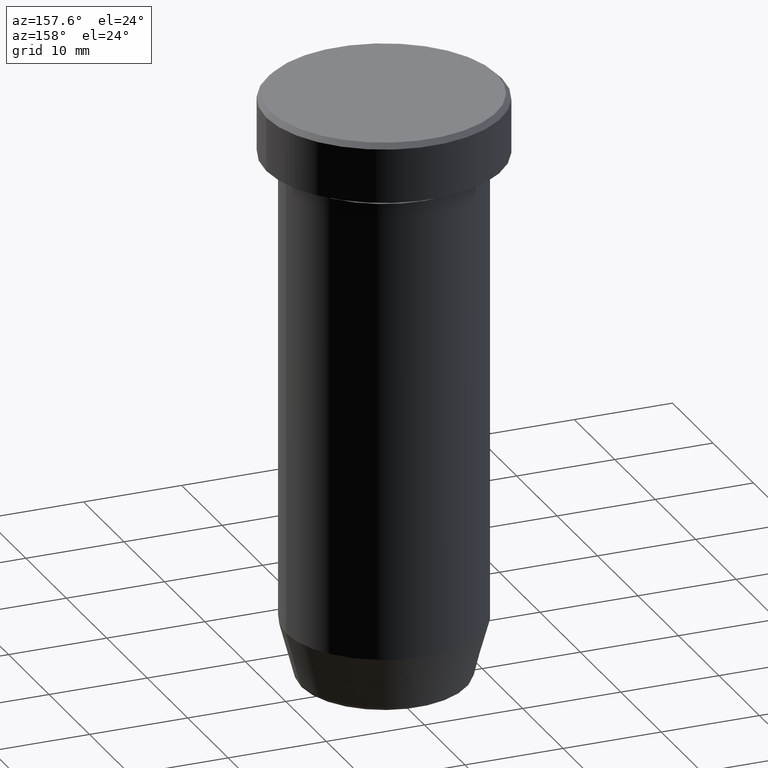
[diagram: clean part render]
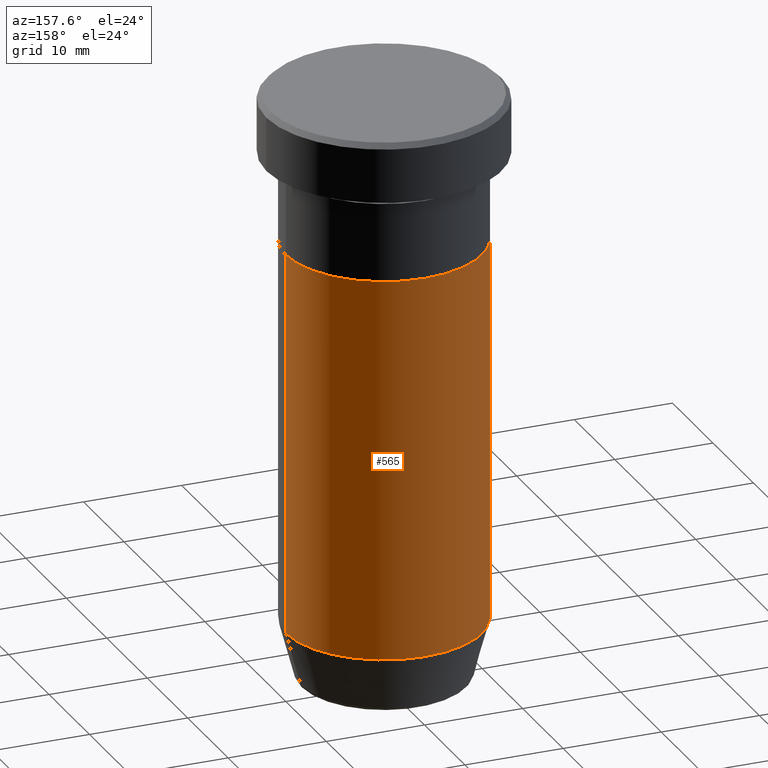
[diagram: same view with one face highlighted and labeled with its STEP entity id]
A machine part, auxiliary view. The second image highlights one B-rep face of the part: STEP entity #565.
In plain terms, the highlighted cylindrical surface (partial cylindrical patch) has radius 10 mm, axis along (-0, -0, 1).
Its self-contained STEP definition (entity closure, byte-faithful):
#22 = VECTOR ( 'NONE', #122, 1000.000000000000000 ) ;
#45 = AXIS2_PLACEMENT_3D ( 'NONE', #84, #494, #249 ) ;
#50 = ORIENTED_EDGE ( 'NONE', *, *, #300, .F. ) ;
#64 = EDGE_CURVE ( 'NONE', #482, #500, #343, .T. ) ;
#84 = CARTESIAN_POINT ( 'NONE',  ( 0.000000000000000000, 0.000000000000000000, -53.99999999999999289 ) ) ;
#96 = AXIS2_PLACEMENT_3D ( 'NONE', #239, #426, #288 ) ;
#122 = DIRECTION ( 'NONE',  ( -0.000000000000000000, -0.000000000000000000, 1.000000000000000000 ) ) ;
#135 = DIRECTION ( 'NONE',  ( -0.000000000000000000, -0.000000000000000000, 1.000000000000000000 ) ) ;
#158 = CARTESIAN_POINT ( 'NONE',  ( -10.00000000000000000, 1.224646799147353256E-15, -15.00000000000000000 ) ) ;
#164 = DIRECTION ( 'NONE',  ( 1.000000000000000000, 0.000000000000000000, 0.000000000000000000 ) ) ;
#178 = CARTESIAN_POINT ( 'NONE',  ( 9.999999999999998224, 0.000000000000000000, 0.000000000000000000 ) ) ;
#206 = EDGE_LOOP ( 'NONE', ( #368, #491, #50, #531 ) ) ;
#215 = DIRECTION ( 'NONE',  ( -0.000000000000000000, -0.000000000000000000, 1.000000000000000000 ) ) ;
#239 = CARTESIAN_POINT ( 'NONE',  ( 0.000000000000000000, 0.000000000000000000, -15.00000000000000000 ) ) ;
#244 = CIRCLE ( 'NONE', #45, 9.999999999999998224 ) ;
#249 = DIRECTION ( 'NONE',  ( 1.000000000000000000, 0.000000000000000000, 0.000000000000000000 ) ) ;
#262 = EDGE_CURVE ( 'NONE', #536, #294, #270, .T. ) ;
#270 = LINE ( 'NONE', #552, #22 ) ;
#272 = AXIS2_PLACEMENT_3D ( 'NONE', #299, #135, #164 ) ;
#288 = DIRECTION ( 'NONE',  ( 1.000000000000000000, 0.000000000000000000, 0.000000000000000000 ) ) ;
#294 = VERTEX_POINT ( 'NONE', #158 ) ;
#299 = CARTESIAN_POINT ( 'NONE',  ( 0.000000000000000000, 0.000000000000000000, 0.000000000000000000 ) ) ;
#300 = EDGE_CURVE ( 'NONE', #500, #294, #322, .T. ) ;
#322 = CIRCLE ( 'NONE', #96, 10.00000000000000000 ) ;
#343 = LINE ( 'NONE', #178, #452 ) ;
#344 = CYLINDRICAL_SURFACE ( 'NONE', #272, 9.999999999999998224 ) ;
#368 = ORIENTED_EDGE ( 'NONE', *, *, #584, .T. ) ;
#384 = CARTESIAN_POINT ( 'NONE',  ( 9.999999999999998224, 0.000000000000000000, -53.99999999999999289 ) ) ;
#397 = FACE_OUTER_BOUND ( 'NONE', #206, .T. ) ;
#426 = DIRECTION ( 'NONE',  ( -0.000000000000000000, -0.000000000000000000, 1.000000000000000000 ) ) ;
#443 = CARTESIAN_POINT ( 'NONE',  ( -9.999999999999998224, 1.224646799147353059E-15, -53.99999999999999289 ) ) ;
#452 = VECTOR ( 'NONE', #215, 1000.000000000000000 ) ;
#482 = VERTEX_POINT ( 'NONE', #384 ) ;
#491 = ORIENTED_EDGE ( 'NONE', *, *, #262, .T. ) ;
#494 = DIRECTION ( 'NONE',  ( -0.000000000000000000, -0.000000000000000000, 1.000000000000000000 ) ) ;
#500 = VERTEX_POINT ( 'NONE', #532 ) ;
#531 = ORIENTED_EDGE ( 'NONE', *, *, #64, .F. ) ;
#532 = CARTESIAN_POINT ( 'NONE',  ( 10.00000000000000000, 0.000000000000000000, -15.00000000000000000 ) ) ;
#536 = VERTEX_POINT ( 'NONE', #443 ) ;
#552 = CARTESIAN_POINT ( 'NONE',  ( -9.999999999999998224, 1.224646799147353059E-15, 0.000000000000000000 ) ) ;
#565 = ADVANCED_FACE ( 'NONE', ( #397 ), #344, .T. ) ;
#584 = EDGE_CURVE ( 'NONE', #482, #536, #244, .T. ) ;